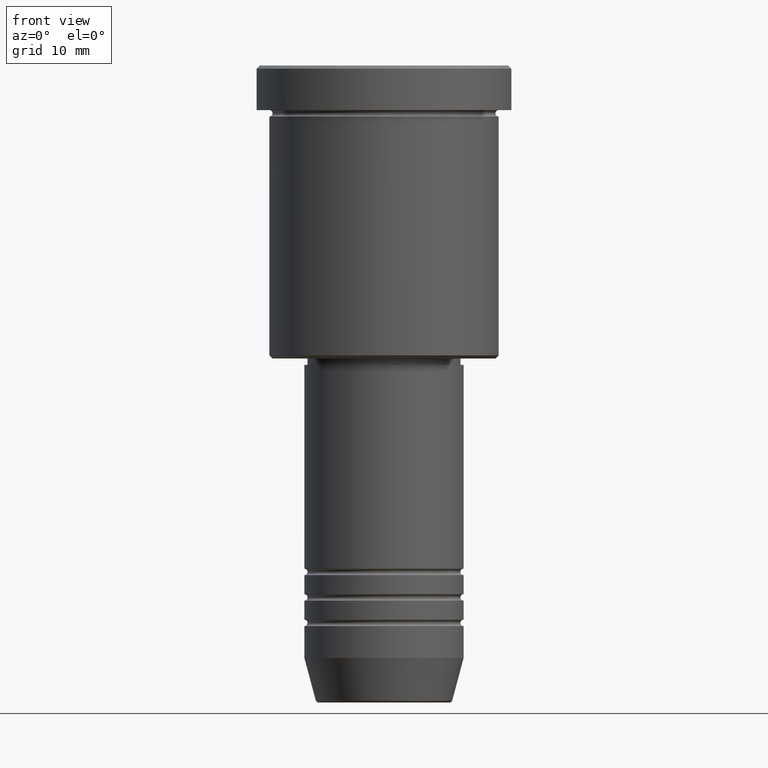
[diagram: clean part render]
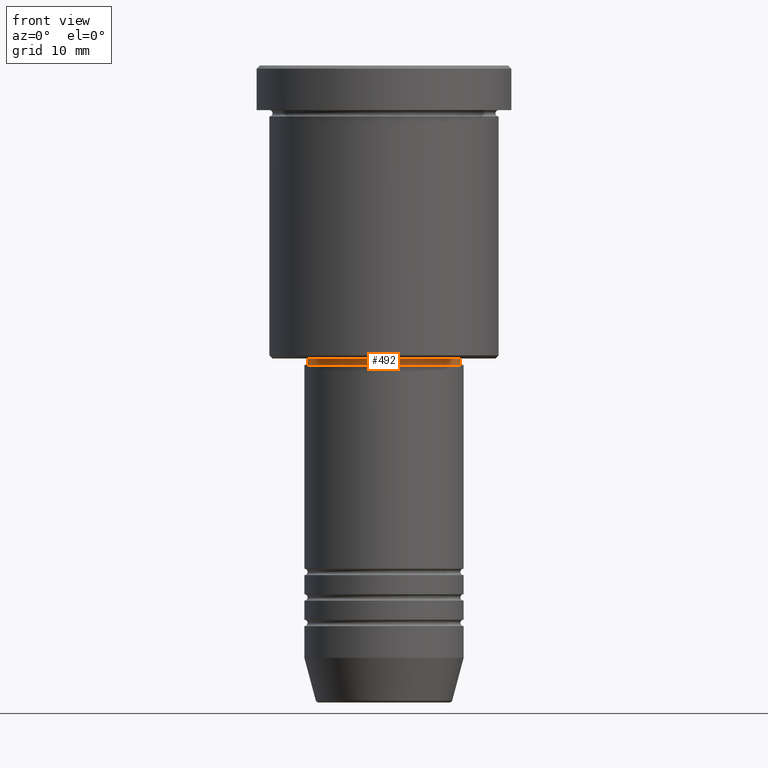
[diagram: same view with one face highlighted and labeled with its STEP entity id]
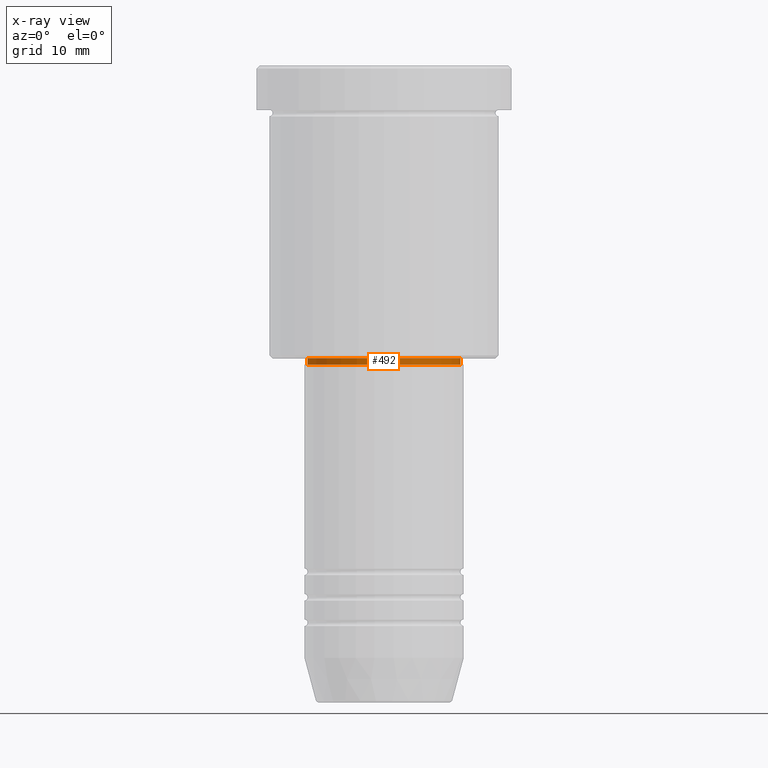
[diagram: x-ray of the same camera — body ghosted, the highlighted face saturated]
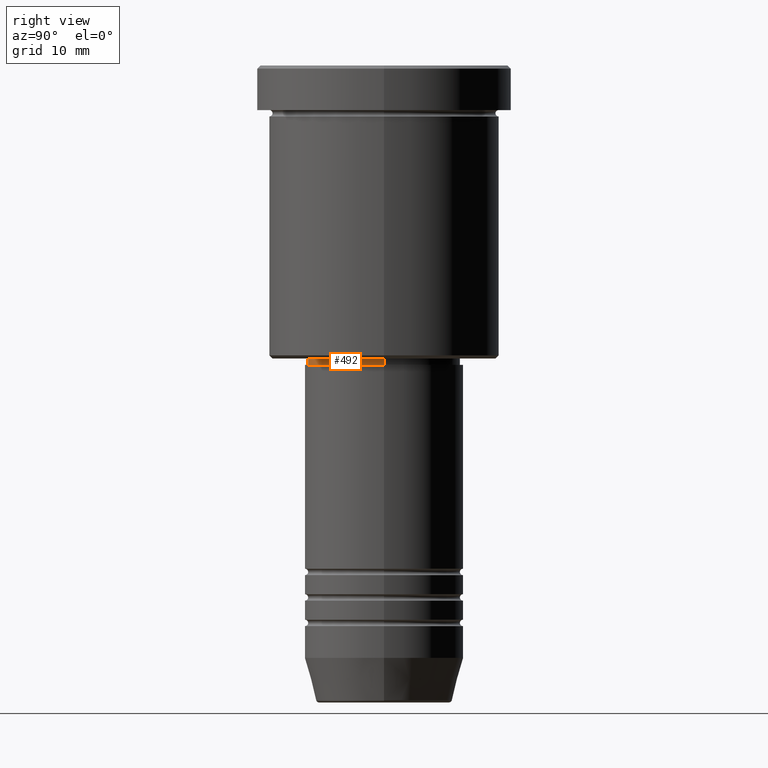
[diagram: same view with one face highlighted and labeled with its STEP entity id]
A machine part, front view. The second image highlights one B-rep face of the part: STEP entity #492.
The next image is the same camera in x-ray: the body ghosted, the highlighted face saturated — about 0% of this face is hidden behind the body in this view.
A second angle (right view) of the same face is appended — the face is thin or edge-on in the first view.
In plain terms, the highlighted cylindrical surface (partial cylindrical patch) has radius 12 mm, axis along (-0, -0, 1).
Its self-contained STEP definition (entity closure, byte-faithful):
#8 = EDGE_CURVE ( 'NONE', #877, #1180, #781, .T. ) ;
#25 = DIRECTION ( 'NONE',  ( -0.000000000000000000, -0.000000000000000000, 1.000000000000000000 ) ) ;
#33 = CIRCLE ( 'NONE', #217, 12.00000000000000000 ) ;
#88 = VECTOR ( 'NONE', #327, 1000.000000000000000 ) ;
#91 = DIRECTION ( 'NONE',  ( 1.000000000000000000, 0.000000000000000000, 0.000000000000000000 ) ) ;
#113 = AXIS2_PLACEMENT_3D ( 'NONE', #674, #25, #828 ) ;
#151 = VERTEX_POINT ( 'NONE', #406 ) ;
#189 = CARTESIAN_POINT ( 'NONE',  ( 12.00000000000000000, 0.000000000000000000, 0.000000000000000000 ) ) ;
#217 = AXIS2_PLACEMENT_3D ( 'NONE', #994, #568, #91 ) ;
#236 = EDGE_LOOP ( 'NONE', ( #959, #320, #1112, #788 ) ) ;
#293 = FACE_OUTER_BOUND ( 'NONE', #236, .T. ) ;
#320 = ORIENTED_EDGE ( 'NONE', *, *, #521, .T. ) ;
#327 = DIRECTION ( 'NONE',  ( -0.000000000000000000, -0.000000000000000000, 1.000000000000000000 ) ) ;
#379 = CARTESIAN_POINT ( 'NONE',  ( -12.00000000000000000, 1.469576158976823947E-15, -47.00000000000000000 ) ) ;
#406 = CARTESIAN_POINT ( 'NONE',  ( 12.00000000000000000, 0.000000000000000000, -46.00000000000000000 ) ) ;
#461 = CARTESIAN_POINT ( 'NONE',  ( 0.000000000000000000, 0.000000000000000000, 0.000000000000000000 ) ) ;
#476 = CYLINDRICAL_SURFACE ( 'NONE', #524, 12.00000000000000000 ) ;
#487 = VECTOR ( 'NONE', #1089, 1000.000000000000000 ) ;
#492 = ADVANCED_FACE ( 'NONE', ( #293 ), #476, .T. ) ;
#506 = EDGE_CURVE ( 'NONE', #1180, #151, #33, .T. ) ;
#521 = EDGE_CURVE ( 'NONE', #877, #1147, #685, .T. ) ;
#524 = AXIS2_PLACEMENT_3D ( 'NONE', #461, #1001, #646 ) ;
#537 = CARTESIAN_POINT ( 'NONE',  ( 12.00000000000000000, 0.000000000000000000, -47.00000000000000000 ) ) ;
#568 = DIRECTION ( 'NONE',  ( -0.000000000000000000, -0.000000000000000000, 1.000000000000000000 ) ) ;
#630 = CARTESIAN_POINT ( 'NONE',  ( -12.00000000000000000, 1.469576158976823947E-15, -46.00000000000000000 ) ) ;
#646 = DIRECTION ( 'NONE',  ( 1.000000000000000000, 0.000000000000000000, 0.000000000000000000 ) ) ;
#674 = CARTESIAN_POINT ( 'NONE',  ( 0.000000000000000000, 0.000000000000000000, -47.00000000000000000 ) ) ;
#685 = CIRCLE ( 'NONE', #113, 12.00000000000000000 ) ;
#736 = LINE ( 'NONE', #189, #487 ) ;
#781 = LINE ( 'NONE', #1158, #88 ) ;
#788 = ORIENTED_EDGE ( 'NONE', *, *, #506, .F. ) ;
#828 = DIRECTION ( 'NONE',  ( 1.000000000000000000, 0.000000000000000000, 0.000000000000000000 ) ) ;
#877 = VERTEX_POINT ( 'NONE', #379 ) ;
#959 = ORIENTED_EDGE ( 'NONE', *, *, #8, .F. ) ;
#963 = EDGE_CURVE ( 'NONE', #1147, #151, #736, .T. ) ;
#994 = CARTESIAN_POINT ( 'NONE',  ( 0.000000000000000000, 0.000000000000000000, -46.00000000000000000 ) ) ;
#1001 = DIRECTION ( 'NONE',  ( -0.000000000000000000, -0.000000000000000000, 1.000000000000000000 ) ) ;
#1089 = DIRECTION ( 'NONE',  ( -0.000000000000000000, -0.000000000000000000, 1.000000000000000000 ) ) ;
#1112 = ORIENTED_EDGE ( 'NONE', *, *, #963, .T. ) ;
#1147 = VERTEX_POINT ( 'NONE', #537 ) ;
#1158 = CARTESIAN_POINT ( 'NONE',  ( -12.00000000000000000, 1.469576158976823947E-15, 0.000000000000000000 ) ) ;
#1180 = VERTEX_POINT ( 'NONE', #630 ) ;